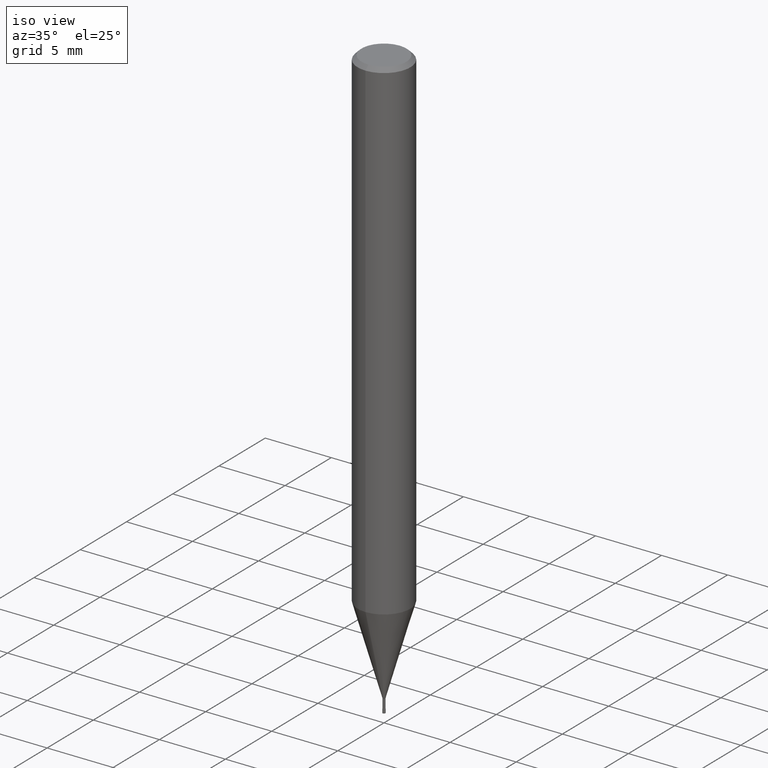
[diagram: clean part render]
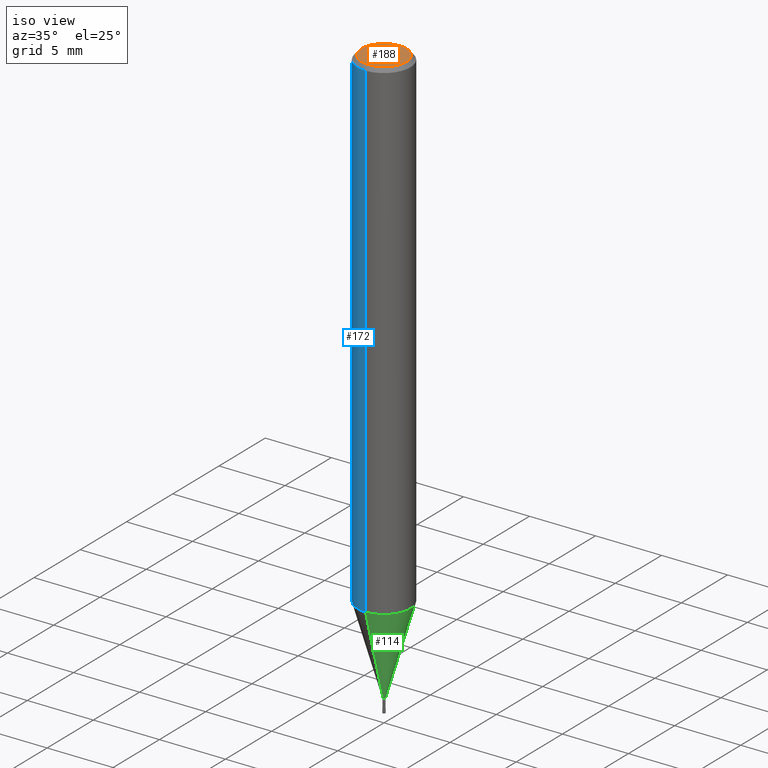
[diagram: same view with three faces highlighted in distinct colors, each labeled with its STEP entity id]
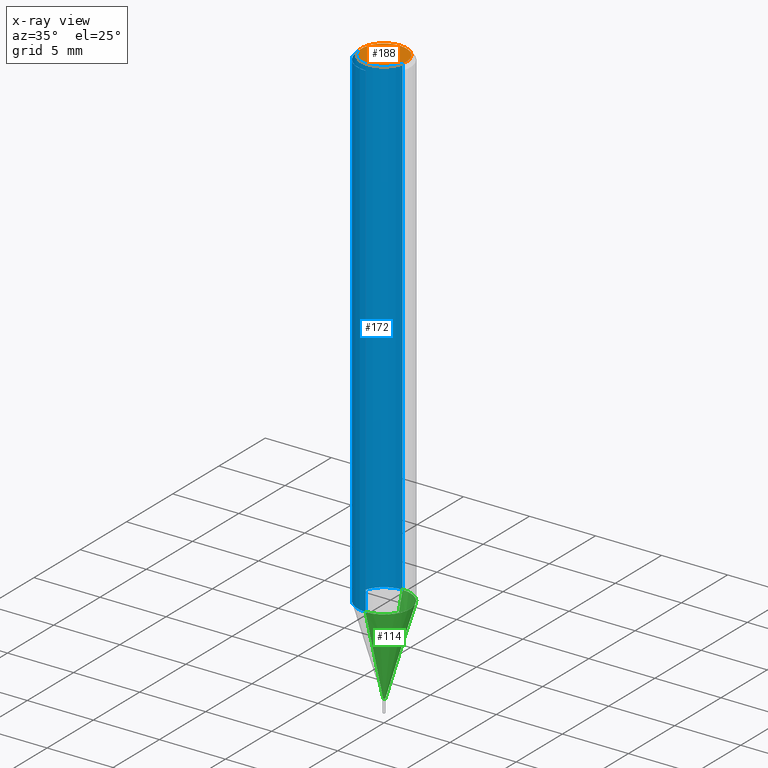
[diagram: x-ray of the same camera — body ghosted, the three highlighted faces saturated]
A machine part, iso view with three faces highlighted in distinct colors.
The next image is the same camera in x-ray (body ghosted, the three faces saturated) — at least one of them is partly hidden behind the body in this view.
Their STEP definitions:

[orange] entity #188 — the highlighted planar face has unit normal (-0, 0, 1).
#112=EDGE_CURVE('',#198,#178,#251,.T.);
#178=VERTEX_POINT('',#326);
#188=ADVANCED_FACE('',(#336),#337,.T.);
#198=VERTEX_POINT('',#347);
#200=EDGE_CURVE('',#178,#198,#349,.T.);
#251=CIRCLE('',#402,1.7);
#326=CARTESIAN_POINT('',(2.08183080149804E-016,-1.7,0.0));
#336=FACE_OUTER_BOUND('',#509,.T.);
#337=PLANE('',#510);
#347=CARTESIAN_POINT('',(0.0,1.7,0.0));
#349=CIRCLE('',#527,1.7);
#402=AXIS2_PLACEMENT_3D('',#562,#563,#564);
#509=EDGE_LOOP('',(#679,#680));
#510=AXIS2_PLACEMENT_3D('',#681,#682,#683);
#527=AXIS2_PLACEMENT_3D('',#686,#687,#688);
#562=CARTESIAN_POINT('',(0.0,0.0,0.0));
#563=DIRECTION('',(0.0,0.0,-1.0));
#564=DIRECTION('',(0.0,1.0,0.0));
#679=ORIENTED_EDGE('',*,*,#112,.F.);
#680=ORIENTED_EDGE('',*,*,#200,.F.);
#681=CARTESIAN_POINT('',(0.0,0.85,0.0));
#682=DIRECTION('',(-0.0,0.0,1.0));
#683=DIRECTION('',(0.0,-1.0,0.0));
#686=CARTESIAN_POINT('',(0.0,0.0,0.0));
#687=DIRECTION('',(0.0,0.0,-1.0));
#688=DIRECTION('',(0.0,1.0,0.0));

[blue] entity #172 — the highlighted cylindrical surface (edge-blend (fillet) strip) has radius 2 mm, axis along (-0, -0, 1).
#96=EDGE_CURVE('',#110,#170,#234,.T.);
#98=VERTEX_POINT('',#236);
#110=VERTEX_POINT('',#249);
#132=VERTEX_POINT('',#275);
#140=EDGE_CURVE('',#132,#170,#284,.T.);
#154=EDGE_CURVE('',#98,#110,#300,.T.);
#164=EDGE_CURVE('',#132,#98,#310,.T.);
#170=VERTEX_POINT('',#317);
#172=ADVANCED_FACE('',(#319),#320,.T.);
#234=LINE('',#382,#383);
#236=CARTESIAN_POINT('',(2.44921270764475E-016,-2.0,-0.299999999999997));
#249=CARTESIAN_POINT('',(0.0,2.0,-0.299999999999997));
#275=CARTESIAN_POINT('',(2.44921270764475E-016,-2.0,-37.339));
#284=CIRCLE('',#440,2.0);
#300=CIRCLE('',#460,2.0);
#310=LINE('',#474,#475);
#317=CARTESIAN_POINT('',(0.0,2.0,-37.339));
#319=FACE_OUTER_BOUND('',#486,.T.);
#320=CYLINDRICAL_SURFACE('',#487,2.0);
#382=CARTESIAN_POINT('',(-2.44921270764475E-016,2.0,-18.8195));
#383=VECTOR('',#551,1.0);
#440=AXIS2_PLACEMENT_3D('',#609,#610,#611);
#460=AXIS2_PLACEMENT_3D('',#635,#636,#637);
#474=CARTESIAN_POINT('',(2.44921270764475E-016,-2.0,-18.8195));
#475=VECTOR('',#647,1.0);
#486=EDGE_LOOP('',(#658,#659,#660,#661));
#487=AXIS2_PLACEMENT_3D('',#662,#663,#664);
#551=DIRECTION('',(0.0,0.0,-1.0));
#609=CARTESIAN_POINT('',(0.0,0.0,-37.339));
#610=DIRECTION('',(0.0,0.0,-1.0));
#611=DIRECTION('',(0.0,1.0,0.0));
#635=CARTESIAN_POINT('',(0.0,0.0,-0.299999999999997));
#636=DIRECTION('',(0.0,0.0,-1.0));
#637=DIRECTION('',(0.0,1.0,0.0));
#647=DIRECTION('',(-0.0,-0.0,1.0));
#658=ORIENTED_EDGE('',*,*,#96,.T.);
#659=ORIENTED_EDGE('',*,*,#140,.F.);
#660=ORIENTED_EDGE('',*,*,#164,.T.);
#661=ORIENTED_EDGE('',*,*,#154,.T.);
#662=CARTESIAN_POINT('',(0.0,0.0,-18.8195));
#663=DIRECTION('',(-0.0,-0.0,1.0));
#664=DIRECTION('',(0.0,1.0,0.0));

[green] entity #114 — the highlighted conical surface has half-angle 16 deg.
#102=VERTEX_POINT('',#241);
#114=ADVANCED_FACE('',(#253),#254,.T.);
#126=EDGE_CURVE('',#102,#128,#268,.T.);
#128=VERTEX_POINT('',#270);
#152=EDGE_CURVE('',#196,#128,#298,.T.);
#174=EDGE_CURVE('',#186,#102,#322,.T.);
#186=VERTEX_POINT('',#334);
#192=EDGE_CURVE('',#196,#186,#341,.T.);
#196=VERTEX_POINT('',#345);
#241=CARTESIAN_POINT('',(1.10153341526323E-017,-0.08995,-44.0));
#253=FACE_OUTER_BOUND('',#404,.T.);
#254=CONICAL_SURFACE('',#405,1.04495,0.279251152364767);
#268=LINE('',#422,#423);
#270=CARTESIAN_POINT('',(2.44915147732706E-016,-1.99995,-37.339));
#298=CIRCLE('',#457,1.99995);
#322=CIRCLE('',#490,0.08995);
#334=CARTESIAN_POINT('',(0.0,0.08995,-44.0));
#341=LINE('',#517,#518);
#345=CARTESIAN_POINT('',(0.0,1.99995,-37.339));
#404=EDGE_LOOP('',(#566,#567,#568,#569));
#405=AXIS2_PLACEMENT_3D('',#570,#571,#572);
#422=CARTESIAN_POINT('',(1.27965240942669E-016,-1.04495,-40.6695));
#423=VECTOR('',#592,1.0);
#457=AXIS2_PLACEMENT_3D('',#632,#633,#634);
#490=AXIS2_PLACEMENT_3D('',#665,#666,#667);
#517=CARTESIAN_POINT('',(-1.27965240942669E-016,1.04495,-40.6695));
#518=VECTOR('',#685,1.0);
#566=ORIENTED_EDGE('',*,*,#192,.F.);
#567=ORIENTED_EDGE('',*,*,#152,.T.);
#568=ORIENTED_EDGE('',*,*,#126,.F.);
#569=ORIENTED_EDGE('',*,*,#174,.F.);
#570=CARTESIAN_POINT('',(0.0,0.0,-40.6695));
#571=DIRECTION('',(-0.0,-0.0,1.0));
#572=DIRECTION('',(0.0,1.0,0.0));
#592=DIRECTION('',(3.37545458626217E-017,-0.275635887052711,0.961262117098487));
#632=CARTESIAN_POINT('',(0.0,0.0,-37.339));
#633=DIRECTION('',(0.0,0.0,-1.0));
#634=DIRECTION('',(0.0,1.0,0.0));
#665=CARTESIAN_POINT('',(0.0,0.0,-44.0));
#666=DIRECTION('',(0.0,0.0,-1.0));
#667=DIRECTION('',(0.0,1.0,0.0));
#685=DIRECTION('',(3.37545458626217E-017,-0.275635887052711,-0.961262117098487));